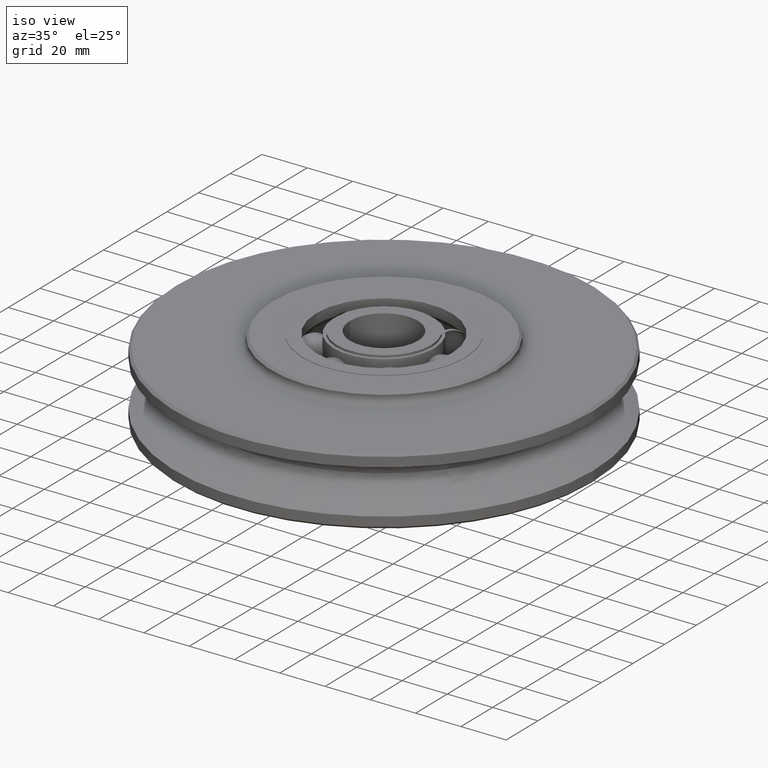
[diagram: clean part render]
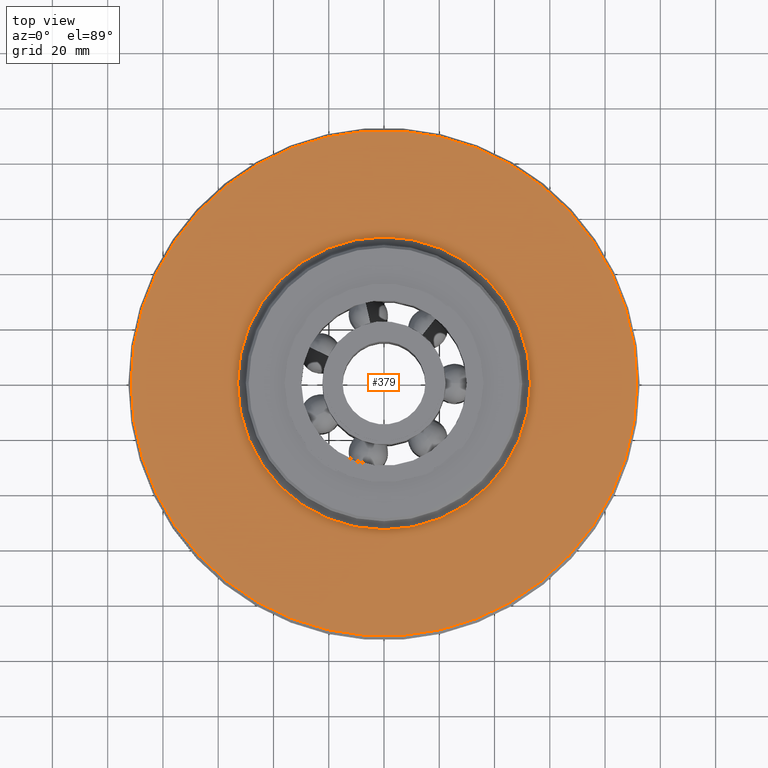
[diagram: tour spotlight — one face highlighted and labeled with its STEP entity id]
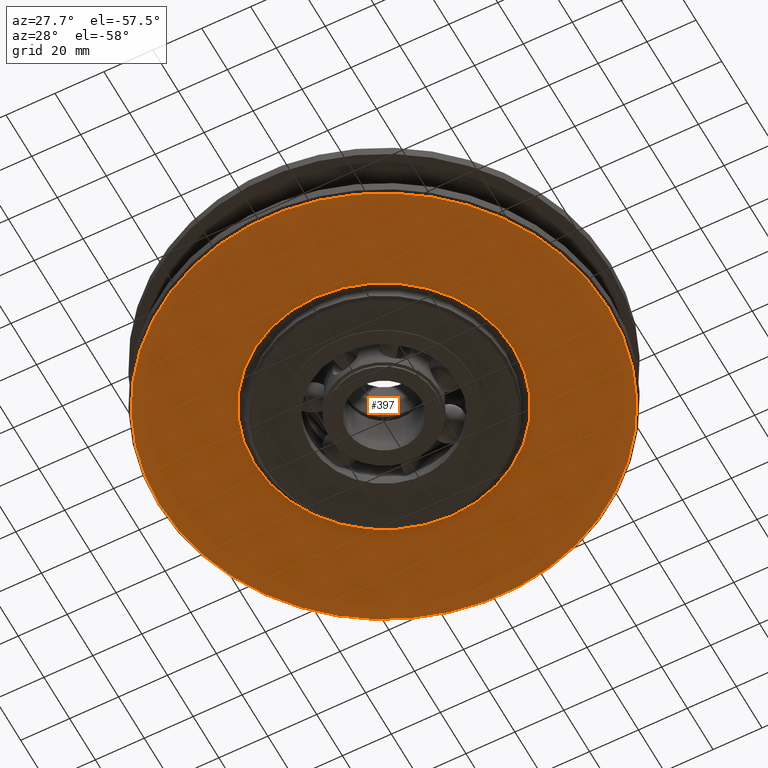
[diagram: tour spotlight — one face highlighted and labeled with its STEP entity id]
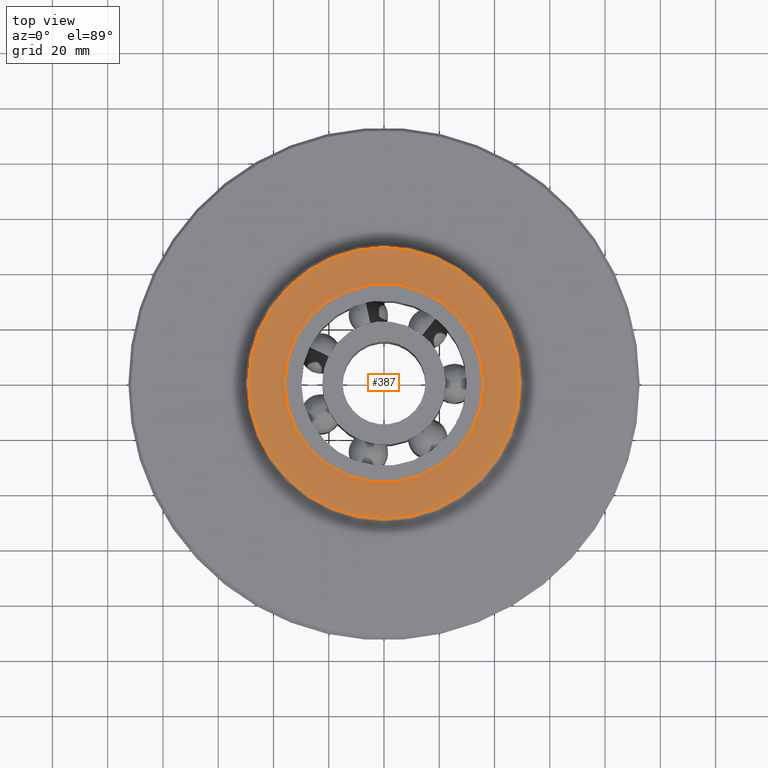
[diagram: tour spotlight — one face highlighted and labeled with its STEP entity id]
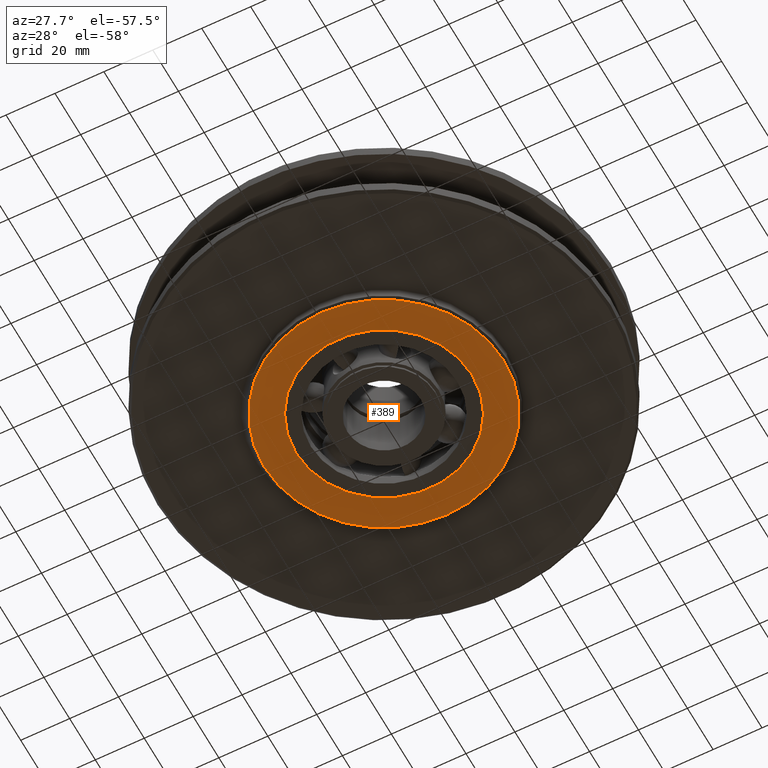
[diagram: tour spotlight — one face highlighted and labeled with its STEP entity id]
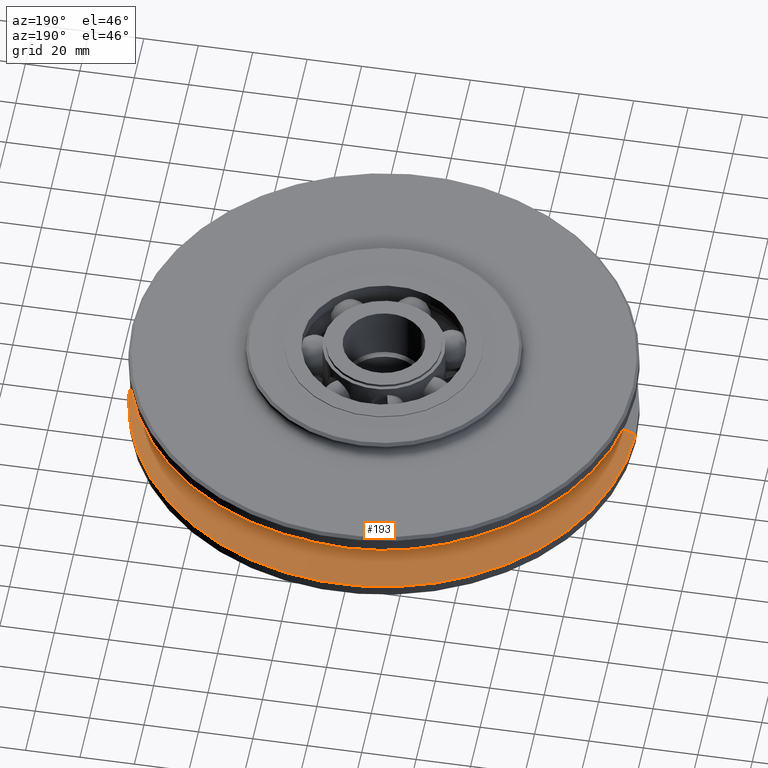
[diagram: tour spotlight — one face highlighted and labeled with its STEP entity id]
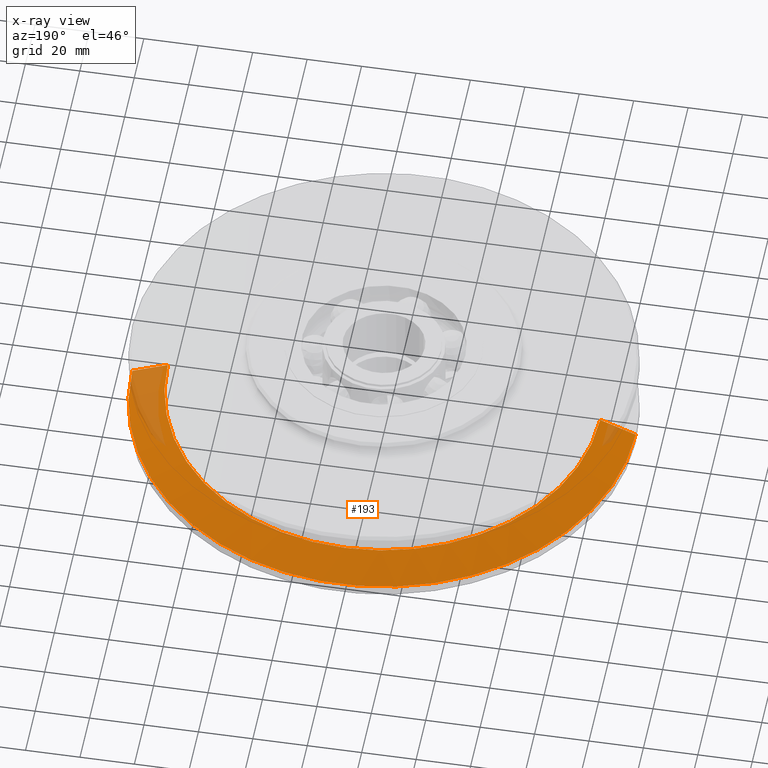
[diagram: x-ray of the same camera — body ghosted, this tour face saturated]
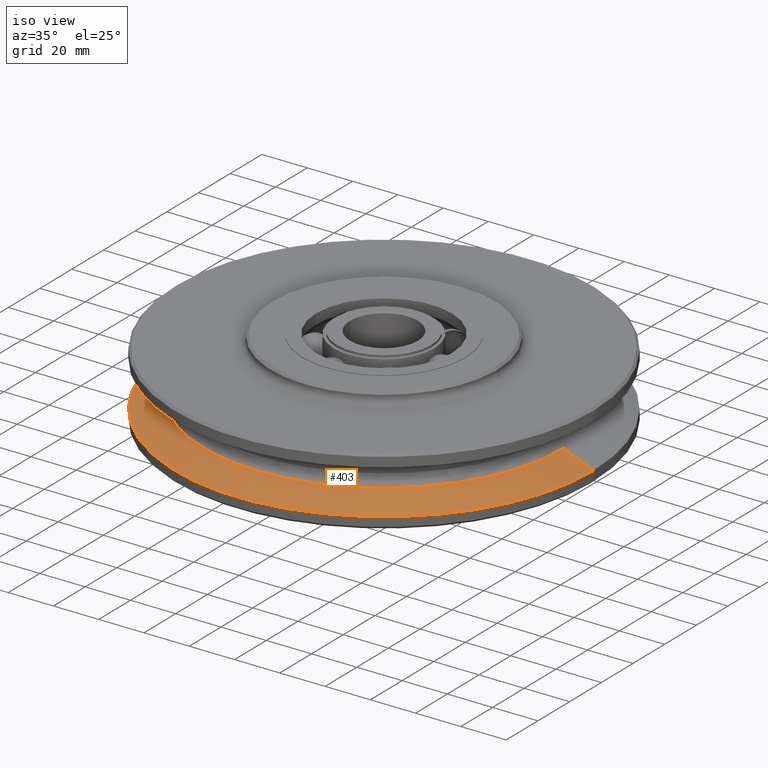
[diagram: tour spotlight — one face highlighted and labeled with its STEP entity id]
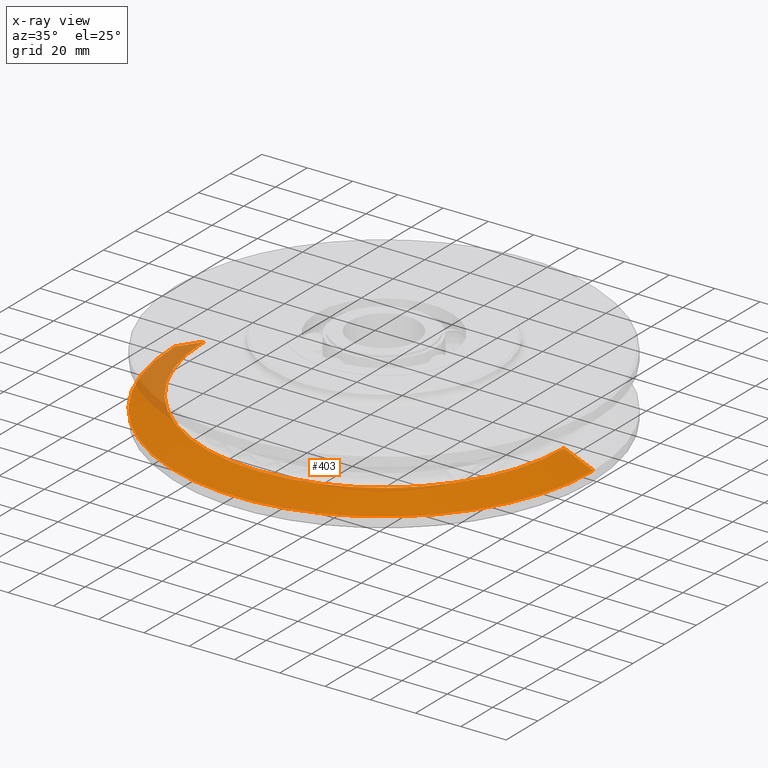
[diagram: x-ray of the same camera — body ghosted, this tour face saturated]
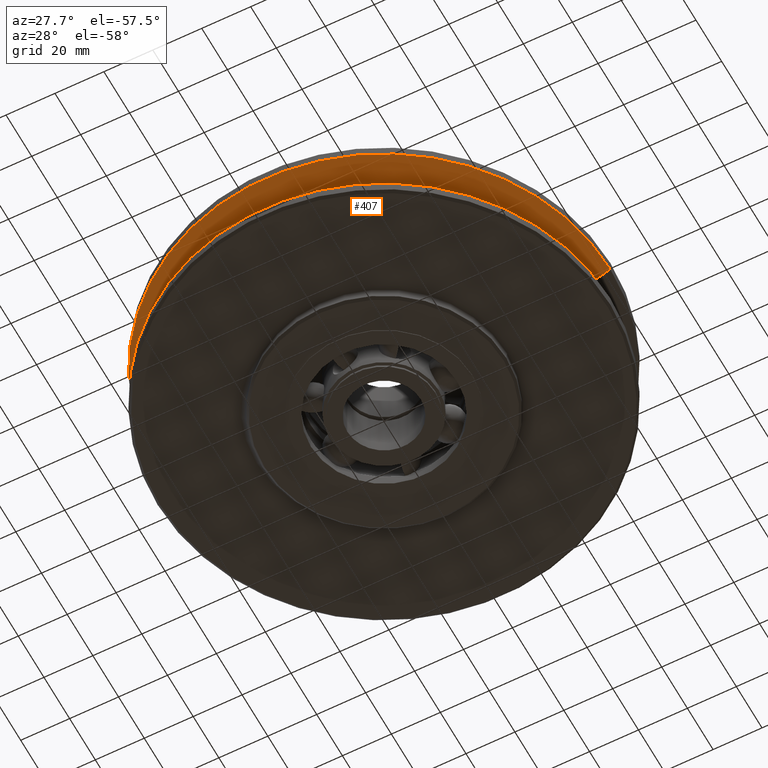
[diagram: tour spotlight — one face highlighted and labeled with its STEP entity id]
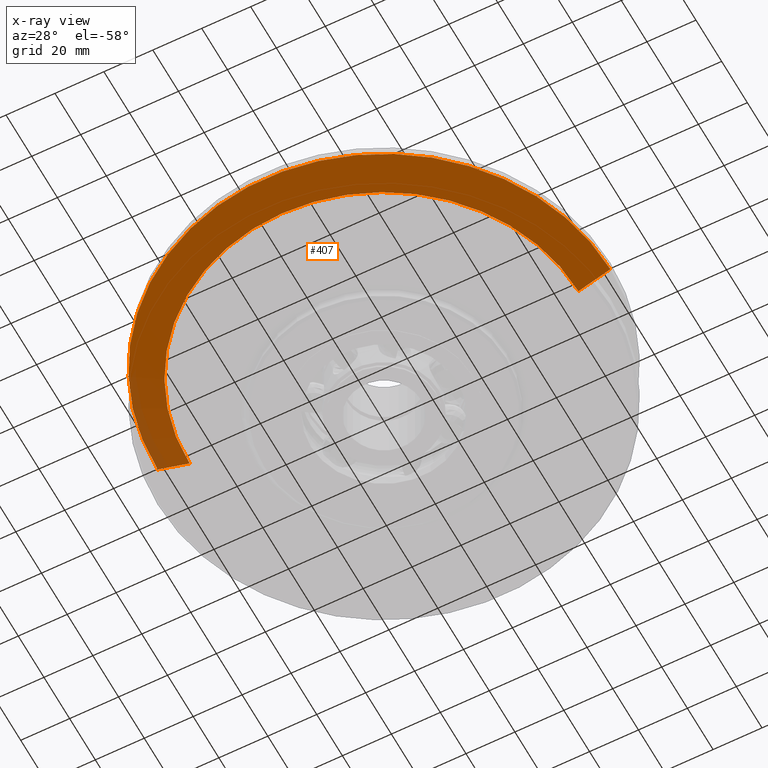
[diagram: x-ray of the same camera — body ghosted, this tour face saturated]
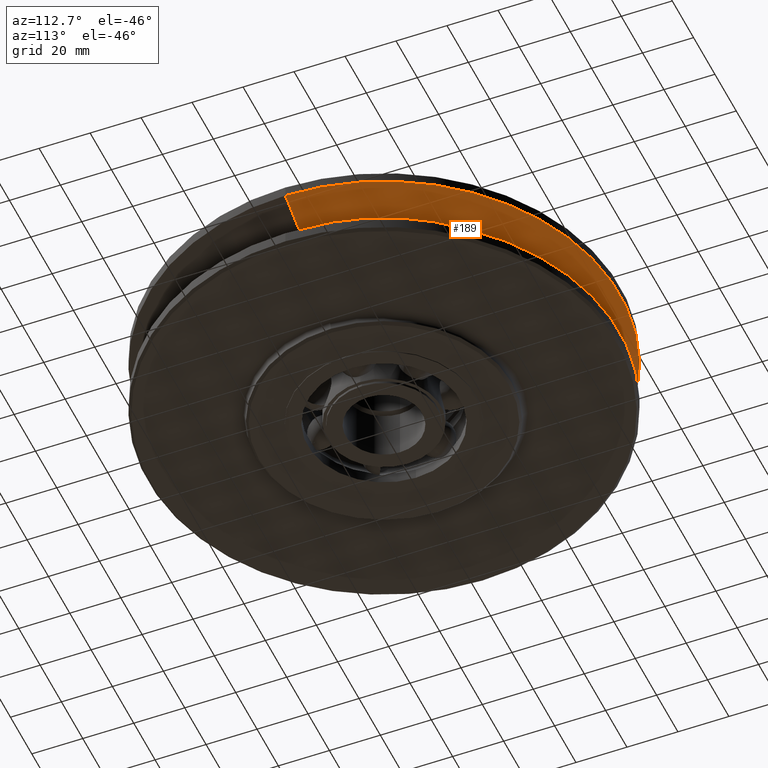
[diagram: tour spotlight — one face highlighted and labeled with its STEP entity id]
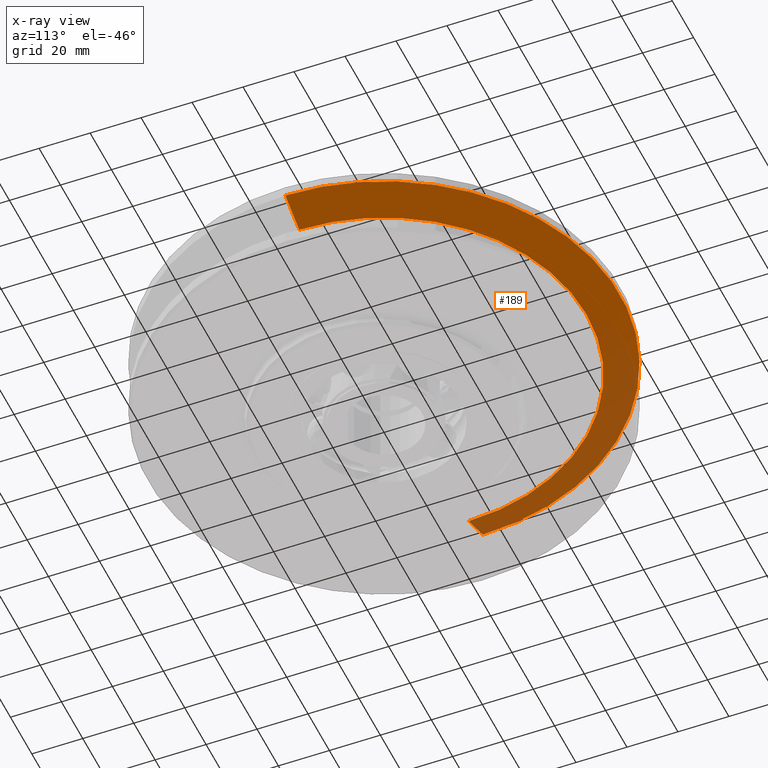
[diagram: x-ray of the same camera — body ghosted, this tour face saturated]
A machine part: a face-by-face anatomy tour. The part has 128 B-rep faces; the first image is the clean iso view, then the 8 largest visible faces are spotlighted one at a time (largest first), each with its STEP entity span.

Face 1 — top view, entity #379. In plain terms, the highlighted planar face has unit normal (0, 0, 1).
Definition (entity closure, byte-faithful):
#379=ADVANCED_FACE('',(#788,#789),#790,.T.);
#788=FACE_BOUND('',#1206,.T.);
#789=FACE_OUTER_BOUND('',#1207,.T.);
#790=PLANE('',#1208);
#1206=EDGE_LOOP('',(#2441,#2442));
#1207=EDGE_LOOP('',(#2443,#2444));
#1208=AXIS2_PLACEMENT_3D('',#2445,#2446,#2447);
#2441=ORIENTED_EDGE('',*,*,#3062,.F.);
#2442=ORIENTED_EDGE('',*,*,#2693,.F.);
#2443=ORIENTED_EDGE('',*,*,#2700,.T.);
#2444=ORIENTED_EDGE('',*,*,#3060,.T.);
#2445=CARTESIAN_POINT('',(72.25,0.0,15.0));
#2446=DIRECTION('',(0.0,0.0,1.0));
#2447=DIRECTION('',(1.0,0.0,0.0));
#2693=EDGE_CURVE('',#3305,#3307,#3308,.T.);
#2700=EDGE_CURVE('',#3313,#3317,#3319,.T.);
#3060=EDGE_CURVE('',#3317,#3313,#3851,.T.);
#3062=EDGE_CURVE('',#3307,#3305,#3853,.T.);
#3305=VERTEX_POINT('',#5176);
#3307=VERTEX_POINT('',#5178);
#3308=CIRCLE('',#5179,53.0);
#3313=VERTEX_POINT('',#5184);
#3317=VERTEX_POINT('',#5189);
#3319=CIRCLE('',#5192,91.5);
#3851=CIRCLE('',#8484,91.5);
#3853=CIRCLE('',#8486,53.0);
#5176=CARTESIAN_POINT('',(-53.0,6.49062803548097E-015,15.0));
#5178=CARTESIAN_POINT('',(53.0,0.0,15.0));
#5179=AXIS2_PLACEMENT_3D('',#8703,#8704,#8705);
#5184=CARTESIAN_POINT('',(91.5,0.0,15.0));
#5189=CARTESIAN_POINT('',(-91.5,1.12055182121983E-014,15.0));
#5192=AXIS2_PLACEMENT_3D('',#8717,#8718,#8719);
#8484=AXIS2_PLACEMENT_3D('',#9110,#9111,#9112);
#8486=AXIS2_PLACEMENT_3D('',#9113,#9114,#9115);
#8703=CARTESIAN_POINT('',(0.0,0.0,15.0));
#8704=DIRECTION('',(0.0,0.0,1.0));
#8705=DIRECTION('',(1.0,0.0,0.0));
#8717=CARTESIAN_POINT('',(0.0,0.0,15.0));
#8718=DIRECTION('',(0.0,0.0,1.0));
#8719=DIRECTION('',(1.0,0.0,0.0));
#9110=CARTESIAN_POINT('',(0.0,0.0,15.0));
#9111=DIRECTION('',(0.0,0.0,1.0));
#9112=DIRECTION('',(1.0,0.0,0.0));
#9113=CARTESIAN_POINT('',(0.0,0.0,15.0));
#9114=DIRECTION('',(0.0,0.0,1.0));
#9115=DIRECTION('',(1.0,0.0,0.0));

Face 2 — auxiliary view, entity #397. In plain terms, the highlighted planar face has unit normal (-0, 0, -1).
Definition (entity closure, byte-faithful):
#397=ADVANCED_FACE('',(#818,#819),#820,.T.);
#818=FACE_OUTER_BOUND('',#1236,.T.);
#819=FACE_BOUND('',#1237,.T.);
#820=PLANE('',#1238);
#1236=EDGE_LOOP('',(#2513,#2514));
#1237=EDGE_LOOP('',(#2515,#2516));
#1238=AXIS2_PLACEMENT_3D('',#2517,#2518,#2519);
#2513=ORIENTED_EDGE('',*,*,#2666,.F.);
#2514=ORIENTED_EDGE('',*,*,#3077,.F.);
#2515=ORIENTED_EDGE('',*,*,#3075,.T.);
#2516=ORIENTED_EDGE('',*,*,#2672,.T.);
#2517=CARTESIAN_POINT('',(72.25,0.0,-15.0));
#2518=DIRECTION('',(-0.0,0.0,-1.0));
#2519=DIRECTION('',(-1.0,-0.0,0.0));
#2666=EDGE_CURVE('',#3262,#3264,#3265,.T.);
#2672=EDGE_CURVE('',#3269,#3273,#3275,.T.);
#3075=EDGE_CURVE('',#3273,#3269,#3866,.T.);
#3077=EDGE_CURVE('',#3264,#3262,#3868,.T.);
#3262=VERTEX_POINT('',#5123);
#3264=VERTEX_POINT('',#5126);
#3265=CIRCLE('',#5127,91.5);
#3269=VERTEX_POINT('',#5132);
#3273=VERTEX_POINT('',#5136);
#3275=CIRCLE('',#5138,53.0);
#3866=CIRCLE('',#8499,53.0);
#3868=CIRCLE('',#8501,91.5);
#5123=CARTESIAN_POINT('',(91.5,0.0,-15.0));
#5126=CARTESIAN_POINT('',(-91.5,1.12055182121983E-014,-15.0));
#5127=AXIS2_PLACEMENT_3D('',#8658,#8659,#8660);
#5132=CARTESIAN_POINT('',(-53.0,6.49062803548097E-015,-15.0));
#5136=CARTESIAN_POINT('',(53.0,0.0,-15.0));
#5138=AXIS2_PLACEMENT_3D('',#8671,#8672,#8673);
#8499=AXIS2_PLACEMENT_3D('',#9128,#9129,#9130);
#8501=AXIS2_PLACEMENT_3D('',#9131,#9132,#9133);
#8658=CARTESIAN_POINT('',(0.0,0.0,-15.0));
#8659=DIRECTION('',(0.0,0.0,1.0));
#8660=DIRECTION('',(1.0,0.0,0.0));
#8671=CARTESIAN_POINT('',(0.0,0.0,-15.0));
#8672=DIRECTION('',(0.0,0.0,1.0));
#8673=DIRECTION('',(1.0,0.0,0.0));
#9128=CARTESIAN_POINT('',(0.0,0.0,-15.0));
#9129=DIRECTION('',(0.0,0.0,1.0));
#9130=DIRECTION('',(1.0,0.0,0.0));
#9131=CARTESIAN_POINT('',(0.0,0.0,-15.0));
#9132=DIRECTION('',(0.0,0.0,1.0));
#9133=DIRECTION('',(1.0,0.0,0.0));

Face 3 — top view, entity #387. In plain terms, the highlighted planar face has unit normal (0, 0, 1).
Definition (entity closure, byte-faithful):
#387=ADVANCED_FACE('',(#801,#802),#803,.T.);
#801=FACE_BOUND('',#1219,.T.);
#802=FACE_OUTER_BOUND('',#1220,.T.);
#803=PLANE('',#1221);
#1219=EDGE_LOOP('',(#2473,#2474));
#1220=EDGE_LOOP('',(#2475,#2476));
#1221=AXIS2_PLACEMENT_3D('',#2477,#2478,#2479);
#2473=ORIENTED_EDGE('',*,*,#2999,.T.);
#2474=ORIENTED_EDGE('',*,*,#2811,.T.);
#2475=ORIENTED_EDGE('',*,*,#2686,.T.);
#2476=ORIENTED_EDGE('',*,*,#3067,.T.);
#2477=CARTESIAN_POINT('',(24.5,0.0,20.0));
#2478=DIRECTION('',(0.0,0.0,1.0));
#2479=DIRECTION('',(1.0,0.0,0.0));
#2686=EDGE_CURVE('',#3291,#3295,#3297,.T.);
#2811=EDGE_CURVE('',#3504,#3501,#3505,.T.);
#2999=EDGE_CURVE('',#3501,#3504,#3782,.T.);
#3067=EDGE_CURVE('',#3295,#3291,#3858,.T.);
#3291=VERTEX_POINT('',#5158);
#3295=VERTEX_POINT('',#5163);
#3297=CIRCLE('',#5166,49.0);
#3501=VERTEX_POINT('',#6246);
#3504=VERTEX_POINT('',#6250);
#3505=CIRCLE('',#6251,36.0);
#3782=CIRCLE('',#7909,36.0);
#3858=CIRCLE('',#8491,49.0);
#5158=CARTESIAN_POINT('',(49.0,0.0,20.0));
#5163=CARTESIAN_POINT('',(-49.0,6.00076931582203E-015,20.0));
#5166=AXIS2_PLACEMENT_3D('',#8692,#8693,#8694);
#6246=CARTESIAN_POINT('',(36.0,0.0,20.0));
#6250=CARTESIAN_POINT('',(-36.0,4.40872847693047E-015,20.0));
#6251=AXIS2_PLACEMENT_3D('',#8857,#8858,#8859);
#7909=AXIS2_PLACEMENT_3D('',#9071,#9072,#9073);
#8491=AXIS2_PLACEMENT_3D('',#9119,#9120,#9121);
#8692=CARTESIAN_POINT('',(0.0,0.0,20.0));
#8693=DIRECTION('',(0.0,0.0,1.0));
#8694=DIRECTION('',(1.0,0.0,0.0));
#8857=CARTESIAN_POINT('',(0.0,0.0,20.0));
#8858=DIRECTION('',(0.0,0.0,-1.0));
#8859=DIRECTION('',(1.0,0.0,0.0));
#9071=CARTESIAN_POINT('',(0.0,0.0,20.0));
#9072=DIRECTION('',(0.0,0.0,-1.0));
#9073=DIRECTION('',(1.0,0.0,0.0));
#9119=CARTESIAN_POINT('',(0.0,0.0,20.0));
#9120=DIRECTION('',(0.0,0.0,1.0));
#9121=DIRECTION('',(1.0,0.0,0.0));

Face 4 — auxiliary view, entity #389. In plain terms, the highlighted planar face has unit normal (-0, 0, -1).
Definition (entity closure, byte-faithful):
#389=ADVANCED_FACE('',(#805,#806),#807,.T.);
#805=FACE_BOUND('',#1223,.T.);
#806=FACE_OUTER_BOUND('',#1224,.T.);
#807=PLANE('',#1225);
#1223=EDGE_LOOP('',(#2481,#2482));
#1224=EDGE_LOOP('',(#2483,#2484));
#1225=AXIS2_PLACEMENT_3D('',#2485,#2486,#2487);
#2481=ORIENTED_EDGE('',*,*,#2941,.T.);
#2482=ORIENTED_EDGE('',*,*,#2916,.T.);
#2483=ORIENTED_EDGE('',*,*,#2680,.F.);
#2484=ORIENTED_EDGE('',*,*,#3070,.F.);
#2485=CARTESIAN_POINT('',(24.5,0.0,-20.0));
#2486=DIRECTION('',(-0.0,0.0,-1.0));
#2487=DIRECTION('',(-1.0,-0.0,0.0));
#2680=EDGE_CURVE('',#3284,#3286,#3287,.T.);
#2916=EDGE_CURVE('',#3681,#3678,#3682,.T.);
#2941=EDGE_CURVE('',#3678,#3681,#3716,.T.);
#3070=EDGE_CURVE('',#3286,#3284,#3861,.T.);
#3284=VERTEX_POINT('',#5149);
#3286=VERTEX_POINT('',#5152);
#3287=CIRCLE('',#5153,49.0);
#3678=VERTEX_POINT('',#7293);
#3681=VERTEX_POINT('',#7297);
#3682=CIRCLE('',#7298,36.0);
#3716=CIRCLE('',#7337,36.0);
#3861=CIRCLE('',#8494,49.0);
#5149=CARTESIAN_POINT('',(49.0,0.0,-20.0));
#5152=CARTESIAN_POINT('',(-49.0,6.00076931582203E-015,-20.0));
#5153=AXIS2_PLACEMENT_3D('',#8683,#8684,#8685);
#7293=CARTESIAN_POINT('',(36.0,0.0,-20.0));
#7297=CARTESIAN_POINT('',(-36.0,-4.40872847693047E-015,-20.0));
#7298=AXIS2_PLACEMENT_3D('',#8991,#8992,#8993);
#7337=AXIS2_PLACEMENT_3D('',#9035,#9036,#9037);
#8494=AXIS2_PLACEMENT_3D('',#9122,#9123,#9124);
#8683=CARTESIAN_POINT('',(0.0,0.0,-20.0));
#8684=DIRECTION('',(0.0,0.0,1.0));
#8685=DIRECTION('',(1.0,0.0,0.0));
#8991=CARTESIAN_POINT('',(0.0,0.0,-20.0));
#8992=DIRECTION('',(0.0,-0.0,1.0));
#8993=DIRECTION('',(1.0,0.0,0.0));
#9035=CARTESIAN_POINT('',(0.0,0.0,-20.0));
#9036=DIRECTION('',(0.0,-0.0,1.0));
#9037=DIRECTION('',(1.0,0.0,0.0));
#9122=CARTESIAN_POINT('',(0.0,0.0,-20.0));
#9123=DIRECTION('',(0.0,0.0,1.0));
#9124=DIRECTION('',(1.0,0.0,0.0));

Face 5 — auxiliary view, entity #193. An x-ray twin of the same camera follows (body ghosted, this face saturated) — the face is partly hidden behind the body. In plain terms, the highlighted conical surface has half-angle 67.5 deg.
Definition (entity closure, byte-faithful):
#193=ADVANCED_FACE('',(#487),#488,.T.);
#487=FACE_OUTER_BOUND('',#905,.T.);
#488=CONICAL_SURFACE('',#906,85.98156,1.17809724555648);
#905=EDGE_LOOP('',(#1417,#1418,#1419,#1420));
#906=AXIS2_PLACEMENT_3D('',#1421,#1422,#1423);
#1417=ORIENTED_EDGE('',*,*,#2656,.F.);
#1418=ORIENTED_EDGE('',*,*,#2657,.T.);
#1419=ORIENTED_EDGE('',*,*,#2658,.F.);
#1420=ORIENTED_EDGE('',*,*,#2659,.F.);
#1421=CARTESIAN_POINT('',(0.0,0.0,-7.13464825));
#1422=DIRECTION('',(-0.0,-0.0,-1.0));
#1423=DIRECTION('',(1.0,0.0,0.0));
#2656=EDGE_CURVE('',#3249,#3245,#3250,.T.);
#2657=EDGE_CURVE('',#3249,#3251,#3252,.T.);
#2658=EDGE_CURVE('',#3243,#3251,#3253,.T.);
#2659=EDGE_CURVE('',#3245,#3243,#3254,.T.);
#3243=VERTEX_POINT('',#5100);
#3245=VERTEX_POINT('',#5102);
#3249=VERTEX_POINT('',#5106);
#3250=LINE('',#5107,#5108);
#3251=VERTEX_POINT('',#5109);
#3252=CIRCLE('',#5110,92.5);
#3253=LINE('',#5111,#5112);
#3254=CIRCLE('',#5113,79.46312);
#5100=CARTESIAN_POINT('',(-79.46312,9.7314255558262E-015,-4.434622));
#5102=CARTESIAN_POINT('',(79.46312,0.0,-4.434622));
#5106=CARTESIAN_POINT('',(92.5,0.0,-9.8346745));
#5107=CARTESIAN_POINT('',(85.98156,-1.05297042239696E-014,-7.13464825));
#5108=VECTOR('',#8644,1.0);
#5109=CARTESIAN_POINT('',(-92.5,1.1327982892113E-014,-9.8346745));
#5110=AXIS2_PLACEMENT_3D('',#8645,#8646,#8647);
#5111=CARTESIAN_POINT('',(-85.98156,1.05297042239696E-014,-7.13464825));
#5112=VECTOR('',#8648,1.0);
#5113=AXIS2_PLACEMENT_3D('',#8649,#8650,#8651);
#8644=DIRECTION('',(-0.923879532687438,1.13142611250342E-016,0.382683431939823));
#8645=CARTESIAN_POINT('',(0.0,0.0,-9.8346745));
#8646=DIRECTION('',(0.0,0.0,1.0));
#8647=DIRECTION('',(1.0,0.0,0.0));
#8648=DIRECTION('',(-0.923879532687438,1.13142611250342E-016,-0.382683431939823));
#8649=CARTESIAN_POINT('',(0.0,0.0,-4.434622));
#8650=DIRECTION('',(0.0,0.0,1.0));
#8651=DIRECTION('',(1.0,0.0,0.0));

Face 6 — iso view, entity #403. An x-ray twin of the same camera follows (body ghosted, this face saturated) — the face is partly hidden behind the body. In plain terms, the highlighted conical surface has half-angle 67.5 deg.
Definition (entity closure, byte-faithful):
#403=ADVANCED_FACE('',(#828),#829,.T.);
#828=FACE_OUTER_BOUND('',#1246,.T.);
#829=CONICAL_SURFACE('',#1247,85.98156,1.17809724555648);
#1246=EDGE_LOOP('',(#2537,#2538,#2539,#2540));
#1247=AXIS2_PLACEMENT_3D('',#2541,#2542,#2543);
#2537=ORIENTED_EDGE('',*,*,#2656,.T.);
#2538=ORIENTED_EDGE('',*,*,#2653,.F.);
#2539=ORIENTED_EDGE('',*,*,#2658,.T.);
#2540=ORIENTED_EDGE('',*,*,#3081,.T.);
#2541=CARTESIAN_POINT('',(0.0,0.0,-7.13464825));
#2542=DIRECTION('',(-0.0,-0.0,-1.0));
#2543=DIRECTION('',(1.0,0.0,0.0));
#2653=EDGE_CURVE('',#3243,#3245,#3246,.T.);
#2656=EDGE_CURVE('',#3249,#3245,#3250,.T.);
#2658=EDGE_CURVE('',#3243,#3251,#3253,.T.);
#3081=EDGE_CURVE('',#3251,#3249,#3872,.T.);
#3243=VERTEX_POINT('',#5100);
#3245=VERTEX_POINT('',#5102);
#3246=CIRCLE('',#5103,79.46312);
#3249=VERTEX_POINT('',#5106);
#3250=LINE('',#5107,#5108);
#3251=VERTEX_POINT('',#5109);
#3253=LINE('',#5111,#5112);
#3872=CIRCLE('',#8505,92.5);
#5100=CARTESIAN_POINT('',(-79.46312,9.7314255558262E-015,-4.434622));
#5102=CARTESIAN_POINT('',(79.46312,0.0,-4.434622));
#5103=AXIS2_PLACEMENT_3D('',#8638,#8639,#8640);
#5106=CARTESIAN_POINT('',(92.5,0.0,-9.8346745));
#5107=CARTESIAN_POINT('',(85.98156,-1.05297042239696E-014,-7.13464825));
#5108=VECTOR('',#8644,1.0);
#5109=CARTESIAN_POINT('',(-92.5,1.1327982892113E-014,-9.8346745));
#5111=CARTESIAN_POINT('',(-85.98156,1.05297042239696E-014,-7.13464825));
#5112=VECTOR('',#8648,1.0);
#8505=AXIS2_PLACEMENT_3D('',#9137,#9138,#9139);
#8638=CARTESIAN_POINT('',(0.0,0.0,-4.434622));
#8639=DIRECTION('',(0.0,0.0,1.0));
#8640=DIRECTION('',(1.0,0.0,0.0));
#8644=DIRECTION('',(-0.923879532687438,1.13142611250342E-016,0.382683431939823));
#8648=DIRECTION('',(-0.923879532687438,1.13142611250342E-016,-0.382683431939823));
#9137=CARTESIAN_POINT('',(0.0,0.0,-9.8346745));
#9138=DIRECTION('',(0.0,0.0,1.0));
#9139=DIRECTION('',(1.0,0.0,0.0));

Face 7 — auxiliary view, entity #407. An x-ray twin of the same camera follows (body ghosted, this face saturated) — the face is partly hidden behind the body. In plain terms, the highlighted conical surface has half-angle 67.5 deg.
Definition (entity closure, byte-faithful):
#407=ADVANCED_FACE('',(#834),#835,.T.);
#834=FACE_OUTER_BOUND('',#1252,.T.);
#835=CONICAL_SURFACE('',#1253,85.98156,1.17809724555648);
#1252=EDGE_LOOP('',(#2553,#2554,#2555,#2556));
#1253=AXIS2_PLACEMENT_3D('',#2557,#2558,#2559);
#2553=ORIENTED_EDGE('',*,*,#2648,.T.);
#2554=ORIENTED_EDGE('',*,*,#3058,.F.);
#2555=ORIENTED_EDGE('',*,*,#2649,.T.);
#2556=ORIENTED_EDGE('',*,*,#2646,.T.);
#2557=CARTESIAN_POINT('',(0.0,0.0,7.13464825));
#2558=DIRECTION('',(-0.0,-0.0,1.0));
#2559=DIRECTION('',(1.0,0.0,0.0));
#2646=EDGE_CURVE('',#3090,#3092,#3235,.T.);
#2648=EDGE_CURVE('',#3092,#3237,#3238,.T.);
#2649=EDGE_CURVE('',#3239,#3090,#3240,.T.);
#3058=EDGE_CURVE('',#3239,#3237,#3849,.T.);
#3090=VERTEX_POINT('',#3881);
#3092=VERTEX_POINT('',#3883);
#3235=CIRCLE('',#5090,79.46312);
#3237=VERTEX_POINT('',#5092);
#3238=LINE('',#5093,#5094);
#3239=VERTEX_POINT('',#5095);
#3240=LINE('',#5096,#5097);
#3849=CIRCLE('',#8482,92.5);
#3881=CARTESIAN_POINT('',(-79.46312,9.7314255558262E-015,4.434622));
#3883=CARTESIAN_POINT('',(79.46312,0.0,4.434622));
#5090=AXIS2_PLACEMENT_3D('',#8627,#8628,#8629);
#5092=CARTESIAN_POINT('',(92.5,0.0,9.8346745));
#5093=CARTESIAN_POINT('',(85.98156,-1.05297042239696E-014,7.13464825));
#5094=VECTOR('',#8630,1.0);
#5095=CARTESIAN_POINT('',(-92.5,1.1327982892113E-014,9.8346745));
#5096=CARTESIAN_POINT('',(-85.98156,1.05297042239696E-014,7.13464825));
#5097=VECTOR('',#8631,1.0);
#8482=AXIS2_PLACEMENT_3D('',#9107,#9108,#9109);
#8627=CARTESIAN_POINT('',(0.0,0.0,4.434622));
#8628=DIRECTION('',(0.0,0.0,1.0));
#8629=DIRECTION('',(1.0,0.0,0.0));
#8630=DIRECTION('',(0.923879532687438,-1.13142611250342E-016,0.382683431939823));
#8631=DIRECTION('',(0.923879532687438,-1.13142611250342E-016,-0.382683431939823));
#9107=CARTESIAN_POINT('',(0.0,0.0,9.8346745));
#9108=DIRECTION('',(0.0,0.0,1.0));
#9109=DIRECTION('',(1.0,0.0,0.0));

Face 8 — auxiliary view, entity #189. An x-ray twin of the same camera follows (body ghosted, this face saturated) — the face is partly hidden behind the body. In plain terms, the highlighted conical surface has half-angle 67.5 deg.
Definition (entity closure, byte-faithful):
#189=ADVANCED_FACE('',(#481),#482,.T.);
#481=FACE_OUTER_BOUND('',#899,.T.);
#482=CONICAL_SURFACE('',#900,85.98156,1.17809724555648);
#899=EDGE_LOOP('',(#1401,#1402,#1403,#1404));
#900=AXIS2_PLACEMENT_3D('',#1405,#1406,#1407);
#1401=ORIENTED_EDGE('',*,*,#2648,.F.);
#1402=ORIENTED_EDGE('',*,*,#2564,.T.);
#1403=ORIENTED_EDGE('',*,*,#2649,.F.);
#1404=ORIENTED_EDGE('',*,*,#2650,.F.);
#1405=CARTESIAN_POINT('',(0.0,0.0,7.13464825));
#1406=DIRECTION('',(-0.0,-0.0,1.0));
#1407=DIRECTION('',(1.0,0.0,0.0));
#2564=EDGE_CURVE('',#3092,#3090,#3093,.T.);
#2648=EDGE_CURVE('',#3092,#3237,#3238,.T.);
#2649=EDGE_CURVE('',#3239,#3090,#3240,.T.);
#2650=EDGE_CURVE('',#3237,#3239,#3241,.T.);
#3090=VERTEX_POINT('',#3881);
#3092=VERTEX_POINT('',#3883);
#3093=CIRCLE('',#3884,79.46312);
#3237=VERTEX_POINT('',#5092);
#3238=LINE('',#5093,#5094);
#3239=VERTEX_POINT('',#5095);
#3240=LINE('',#5096,#5097);
#3241=CIRCLE('',#5098,92.5);
#3881=CARTESIAN_POINT('',(-79.46312,9.7314255558262E-015,4.434622));
#3883=CARTESIAN_POINT('',(79.46312,0.0,4.434622));
#3884=AXIS2_PLACEMENT_3D('',#8516,#8517,#8518);
#5092=CARTESIAN_POINT('',(92.5,0.0,9.8346745));
#5093=CARTESIAN_POINT('',(85.98156,-1.05297042239696E-014,7.13464825));
#5094=VECTOR('',#8630,1.0);
#5095=CARTESIAN_POINT('',(-92.5,1.1327982892113E-014,9.8346745));
#5096=CARTESIAN_POINT('',(-85.98156,1.05297042239696E-014,7.13464825));
#5097=VECTOR('',#8631,1.0);
#5098=AXIS2_PLACEMENT_3D('',#8632,#8633,#8634);
#8516=CARTESIAN_POINT('',(0.0,0.0,4.434622));
#8517=DIRECTION('',(0.0,0.0,1.0));
#8518=DIRECTION('',(1.0,0.0,0.0));
#8630=DIRECTION('',(0.923879532687438,-1.13142611250342E-016,0.382683431939823));
#8631=DIRECTION('',(0.923879532687438,-1.13142611250342E-016,-0.382683431939823));
#8632=CARTESIAN_POINT('',(0.0,0.0,9.8346745));
#8633=DIRECTION('',(0.0,0.0,1.0));
#8634=DIRECTION('',(1.0,0.0,0.0));